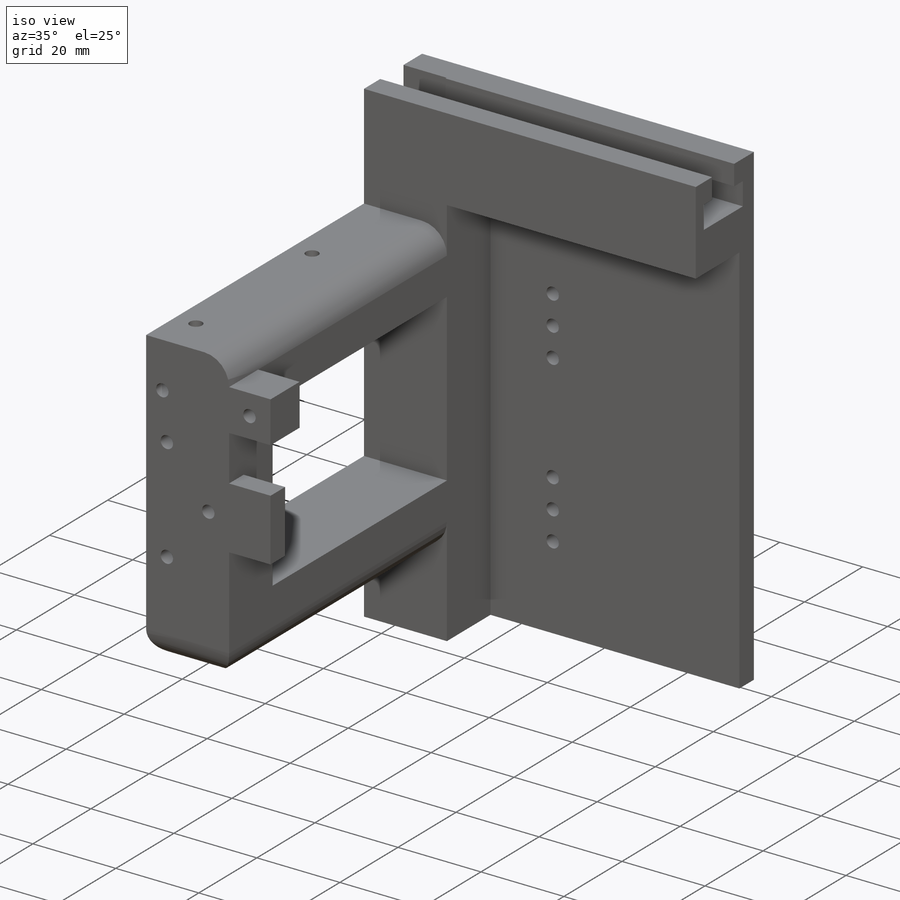
[diagram: iso view]
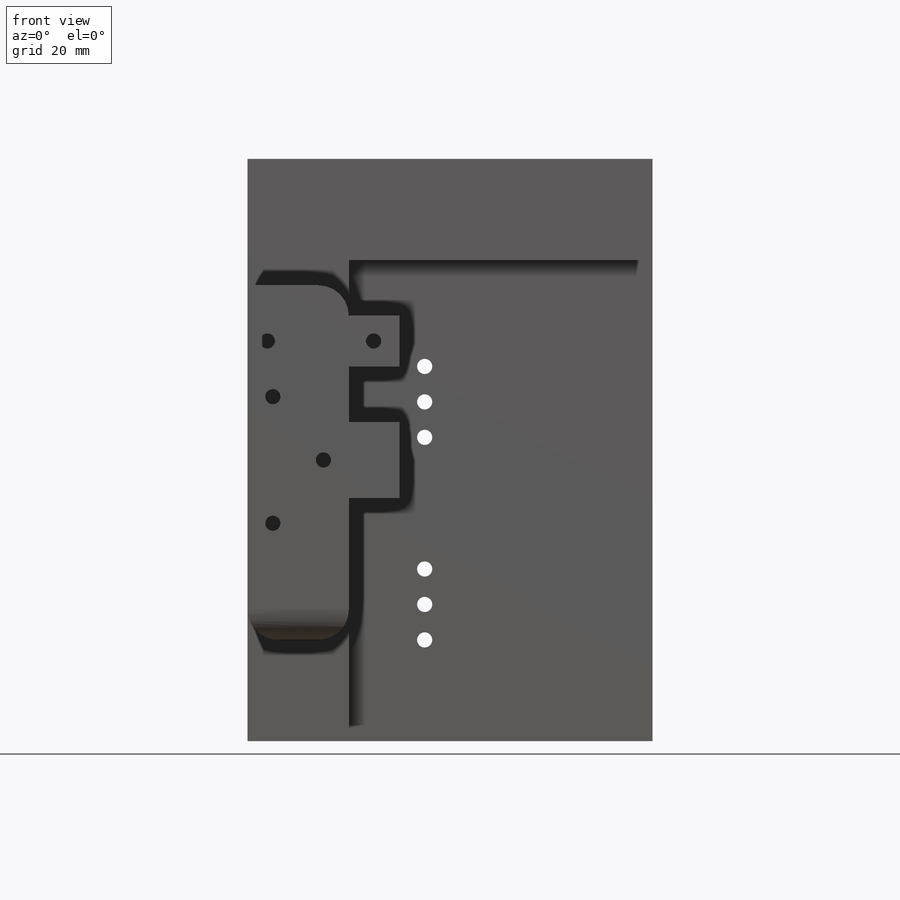
[diagram: front view]
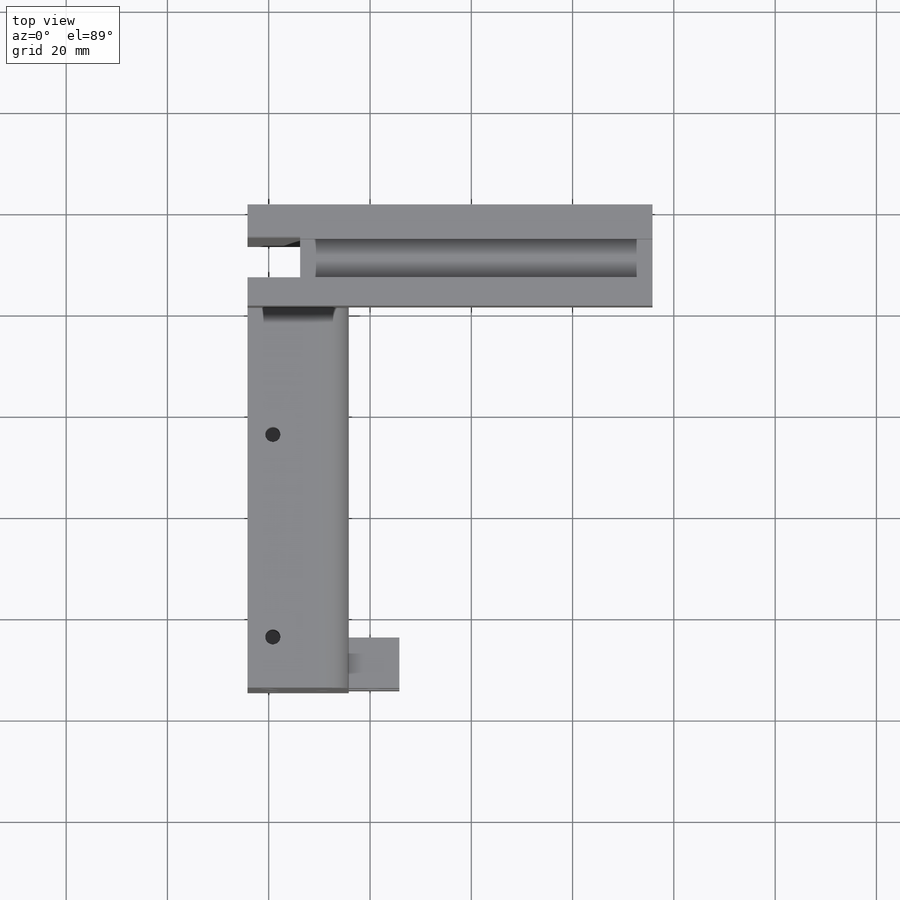
[diagram: top view]
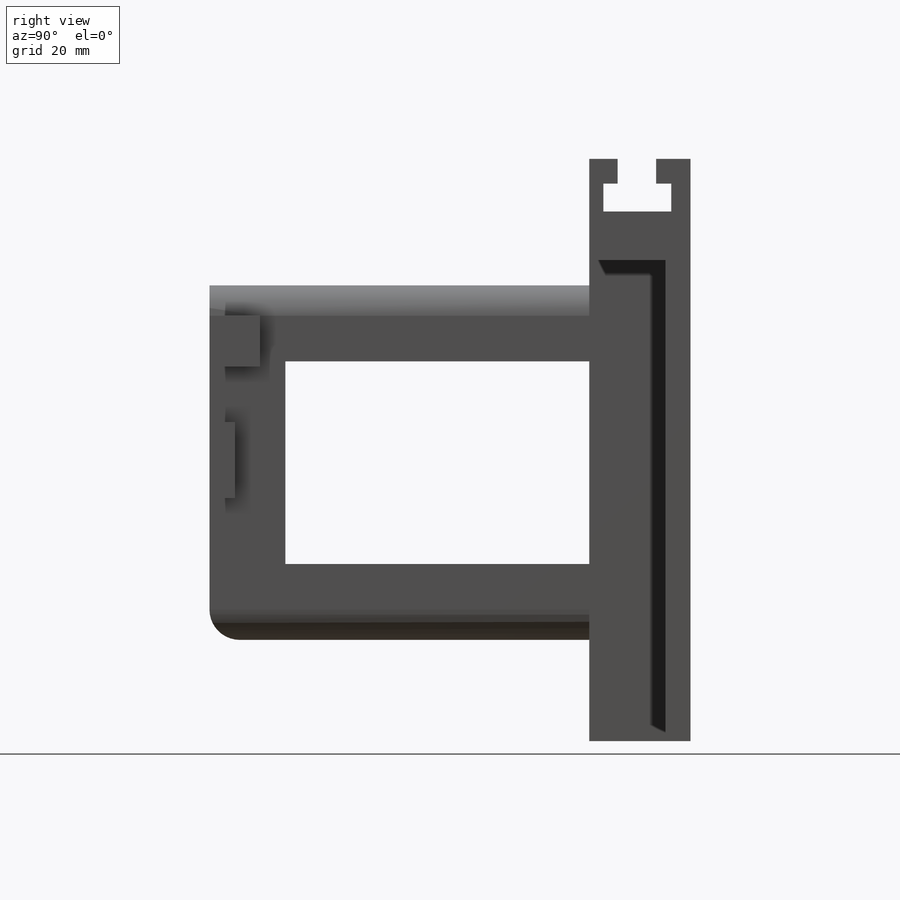
[diagram: right view]
SOLIDWORKS PART (.sldprt)
format: sldprt  version: not decoded by parser v0  size: 441,344 bytes
history: native  units: mm
features: sketch x9, cut_extrude x6, fillet x4, extrude x3, material x1 (+13 scaffold rows collapsed)
feature tree (36):
  scaffold x13  (default folders/planes/origin — collapsed)
  material  "Material <not specified>"
  sketch  "Sketch1"  dims[D1=80.0mm D2=115.0mm D3=90.0mm]
  extrude  "Boss-Extrude1"  Depth=20mm
  sketch  "Sketch2"  dims[D1=0.0mm D2=25.0mm D3=15.0mm D4=60.0mm D5=20.0mm D6=0.0mm D7=60.0mm D8=15.0mm D9=0.0mm D10=15.0mm D11=0.0mm D12=0.0mm]
  extrude  "Boss-Extrude2"  Depth=20mm
  sketch  "Sketch4"  dims[D1=0.0mm D2=10.0mm D3=6.0mm D4=10.0mm D5=0.0mm D6=5.0mm D7=11.0mm D8=15.0mm]
  extrude  "Boss-Extrude3"  Depth=10mm
  sketch  "Sketch3"  dims[c1.D1=~5.461458mm c1.D2=~4.68125mm c1.D3=3.0mm c1.D4=3.0mm c1.D5=3.0mm c1.D6=~4.621559mm c1.D7=3.0mm c1.D8=~4.413779mm c1.D9=3.0mm c1.D10=3.0mm c1.D11=3.0mm c1.D12=3.0mm c1.D13=3.0mm c1.D14=3.0mm c2.D1=36.0mm c2.D2=36.0mm c2.D5=21.0mm c2.D6=11.0mm c2.D8=15.0mm c2.D11=5.0mm c2.D12=25.0mm c2.D13=5.0mm c2.D14=12.5mm]
  cut_extrude  "Cut-Extrude1"  Depth=15mm
  sketch  "Sketch6"  dims[c1.D1=~3.538544mm c1.D2=~3.538544mm c1.D3=3.0mm c1.D4=3.0mm c1.D5=3.0mm c1.D6=3.0mm c2.D1=10.0mm c2.D2=5.0mm c2.D5=5.0mm c2.D6=40.0mm]
  cut_extrude  "Cut-Extrude3"  Depth=15mm
  sketch  "Sketch7"  dims[c1.D1=3.0mm c1.D2=3.0mm c1.D3=~6.300883mm c1.D4=3.0mm c1.D5=3.0mm c1.D6=3.0mm c1.D7=~5.47174mm c1.D8=~9.371343mm c1.D9=3.0mm c1.D10=3.0mm c1.D11=3.0mm c1.D12=3.0mm c1.D13=~6.24263mm c1.D14=3.0mm c1.D15=3.0mm c1.D16=~6.486105mm c1.D17=~6.486105mm c1.D18=3.0mm c2.D2=20.0mm c2.D3=7.0mm c2.D5=35.0mm c2.D6=35.0mm c2.D7=35.0mm c2.D8=35.0mm c2.D10=7.0mm c2.D12=40.0mm c2.D13=7.0mm c2.D15=35.0mm c2.D16=35.0mm c2.D17=7.0mm]
  cut_extrude  "Cut-Extrude4"  [1 undecoded]
  sketch  "Sketch8"  dims[D1=0.0mm D2=0.0mm D3=0.0mm D4=20.0mm]
  cut_extrude  "Cut-Extrude5"  Depth=15mm
  sketch  "Sketch9"  dims[D1=7.6mm D2=0.0mm D3=4.9mm D4=0.0mm D5=6.8mm D6=3.0mm D7=13.4mm D8=5.5mm]
  cut_extrude  "Cut-Extrude6"  [1 undecoded]
  sketch  "Sketch10"  dims[D1=0.0mm D2=6.4mm D3=7.8mm D4=10.4mm]
  cut_extrude  "Cut-Extrude7"  [1 undecoded]
  fillet  "Fillet1"  Radius=6mm
  fillet  "Fillet2"  Radius=6mm
  fillet  "Fillet3"  Radius=6mm
  fillet  "Fillet4"  Radius=6mm
decode coverage: 19 of 22 modeling features carry decoded parameters
note: ~ marks probable driven/reference dimensions
note: 3 parameter values undecoded
summary: no parameter record found for 3 features
note: suppression state not decoded; provenance and decode notes live in map.json
